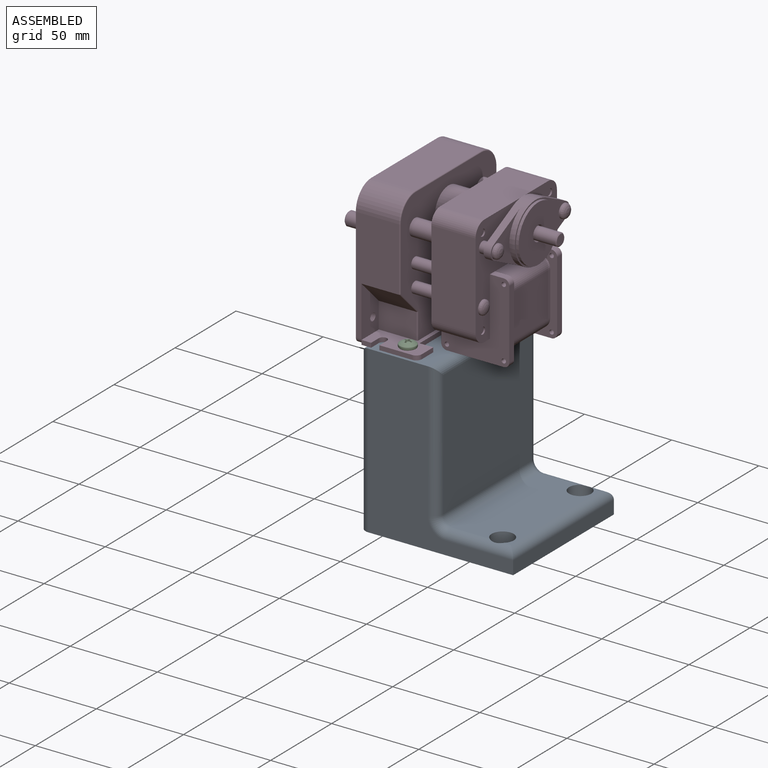
[diagram: assembled view]
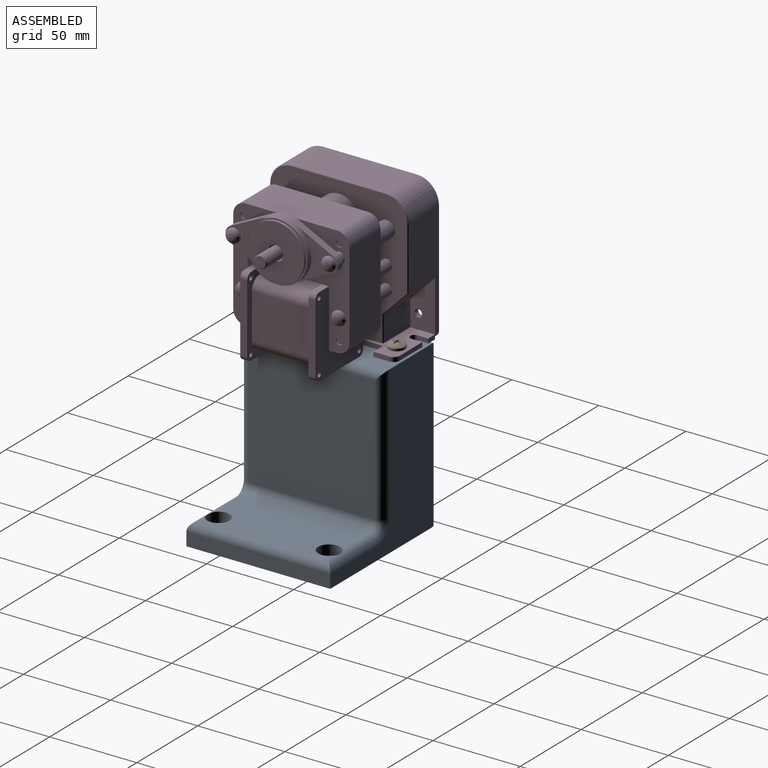
[diagram: assembled view, second angle]
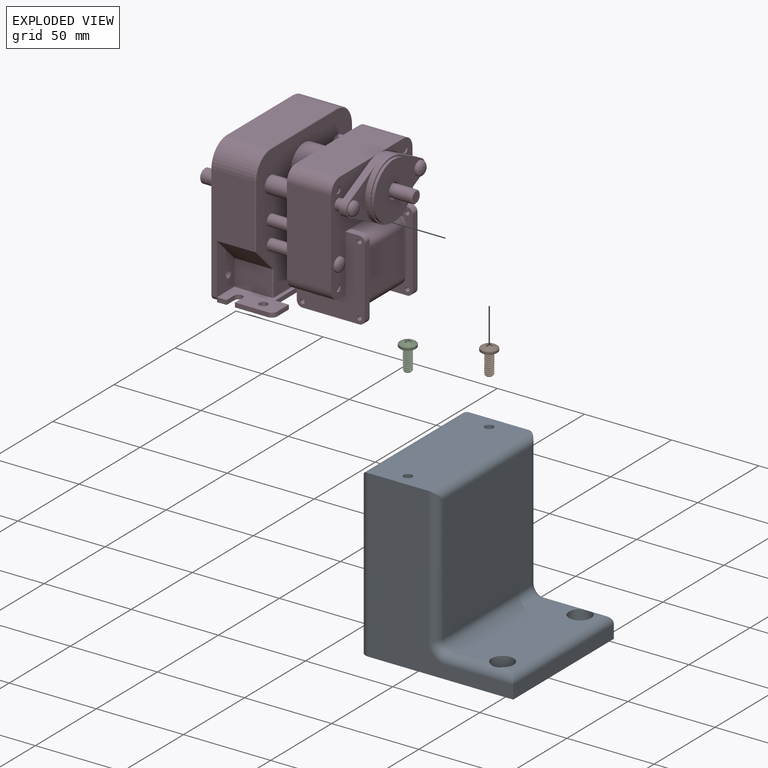
[diagram: exploded view]
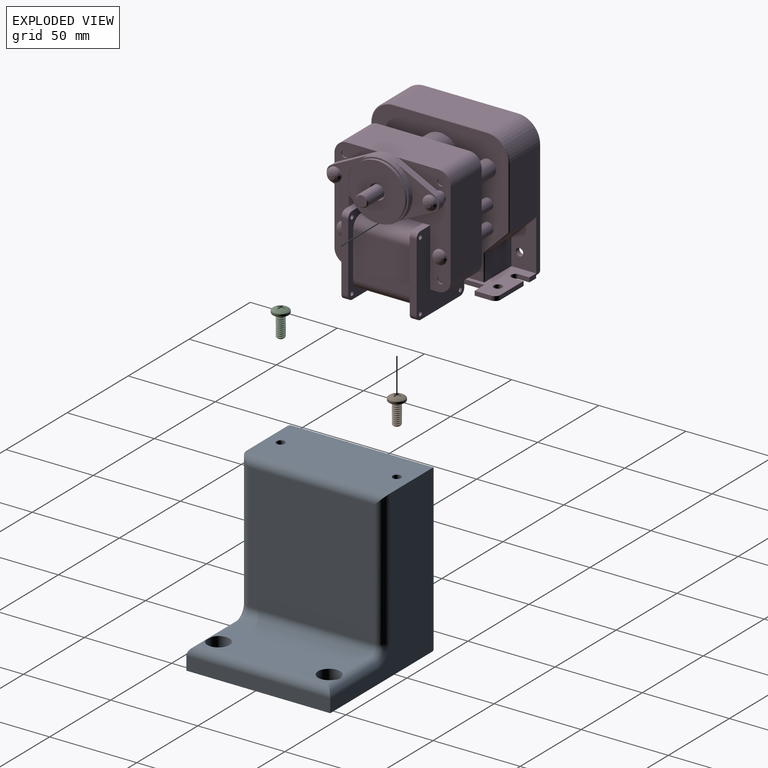
[diagram: exploded view, second angle]
ASSEMBLY  parts=4 mates=3
PART A: 34 faces, bbox 88.2x82.6x95.3 mm
  f0: plane 72.39x33.6mm, normal (0,0,1), area 2203.1mm2, adj f1,f2,f14,f16,f30,f33
  f1: cylinder r=5.08mm len=38.68mm, axis (1,0,0), area 281.8mm2, adj f0,f8,f15,f16,f33
  f2: cylinder r=5.08mm len=38.68mm, axis (-1,0,0), area 281.8mm2, adj f0,f9,f12,f16,f30
  f3: plane 88.21x82.55mm, normal (0,0,-1), area 7144.3mm2, adj f4,f7,f8,f9,f17,f18,f24,f26
  f4: plane 82.55x7.62mm, normal (1,0,0), area 629mm2, adj f3,f8,f9,f16
  f5: plane 72.39x72.39mm, normal (1,0,0), area 5240.3mm2, adj f10,f11,f13,f14
  f6: plane 82.55x34.29mm, normal (0,0,1), area 2794.1mm2, adj f8,f9,f11,f19,f20,f22
  f7: plane 90.17x72.39mm, normal (-1,0,0), area 6527.4mm2, adj f3,f17,f18,f19
  f8: plane 95.25x83.13mm, normal (0,-1,0), area 3660.5mm2, adj f1,f3,f4,f6,f13,f15,f17
  f9: plane 95.25x83.13mm, normal (0,1,0), area 3660.5mm2, adj f2,f3,f4,f6,f10,f12,f18
  f10: cylinder r=5.08mm len=77.47mm, axis (0,0,1), area 603.5mm2, adj f5,f9,f11,f12
  f11: cylinder r=5.08mm len=82.55mm, axis (0,1,0), area 629.3mm2, adj f5,f6,f10,f13
  f12: torus R=10.16mm, axis (0,-1,0), area 86.8mm2, adj f2,f9,f10,f14
  f13: cylinder r=5.08mm len=77.47mm, axis (0,0,-1), area 603.5mm2, adj f5,f8,f11,f15
  f14: cylinder r=5.08mm len=72.39mm, axis (0,-1,0), area 577.6mm2, adj f0,f5,f12,f15
  f15: torus R=10.16mm, axis (0,-1,0), area 86.8mm2, adj f1,f8,f13,f14
  f16: cylinder r=5.08mm len=82.55mm, axis (0,1,0), area 629.3mm2, adj f0,f1,f2,f4
  f17: cylinder r=5.08mm len=95.25mm, axis (0,0,1), area 745.3mm2, adj f3,f7,f8,f19
  f18: cylinder r=5.08mm len=95.25mm, axis (0,0,-1), area 745.3mm2, adj f3,f7,f9,f19
  f19: cylinder r=5.08mm len=82.55mm, axis (0,1,0), area 629.3mm2, adj f6,f7,f17,f18
  f20: cylinder r=2.41mm len=25.4mm, axis (0,0,1), area 385.1mm2, adj f6,f21
  f21: cone r=0mm half-angle=59deg, axis (0,0,1), area 21.3mm2, adj f20
  f22: cylinder r=2.41mm len=25.4mm, axis (0,0,1), area 385.1mm2, adj f6,f23
  f23: cone r=0mm half-angle=59deg, axis (0,0,1), area 21.3mm2, adj f22
  f24: cylinder r=3.17mm len=25.4mm, axis (0,0,-1), area 506.7mm2, adj f3,f25
  f25: cone r=0mm half-angle=59deg, axis (0,0,-1), area 36.9mm2, adj f24
  f26: cylinder r=3.17mm len=25.4mm, axis (0,0,-1), area 506.7mm2, adj f3,f27
  f27: cone r=0mm half-angle=59deg, axis (0,0,-1), area 36.9mm2, adj f26
  f28: cylinder r=3.17mm len=6.35mm, axis (0,0,1), area 119.3mm2, adj f3,f29
  f29: plane 12.7x12.7mm, normal (0,0,1), area 95mm2, adj f28,f30
  f30: cylinder r=6.35mm len=12.7mm, axis (0,0,1), area 266.2mm2, adj f0,f2,f29
  f31: cylinder r=3.17mm len=6.35mm, axis (0,0,1), area 119.3mm2, adj f3,f32
  f32: plane 12.7x12.7mm, normal (0,0,1), area 95mm2, adj f31,f33
  f33: cylinder r=6.35mm len=12.7mm, axis (0,0,1), area 266.2mm2, adj f0,f1,f32
PART B: 68 faces, bbox 10.7x10.7x16.6 mm
  f0: cylinder r=2.41mm len=4.83mm, axis (0,0,1), area 1mm2, adj f12,f13,f24,f25
  f1: cylinder r=2.41mm len=4.83mm, axis (0,0,1), area 1mm2, adj f13,f14,f24,f25
  f2: cylinder r=2.41mm len=4.83mm, axis (0,0,1), area 1mm2, adj f14,f15,f24,f25
  f3: cylinder r=2.41mm len=4.83mm, axis (0,0,1), area 1mm2, adj f15,f16,f24,f25
  f4: cylinder r=2.41mm len=4.83mm, axis (0,0,1), area 1mm2, adj f16,f17,f24,f25
  f5: cylinder r=2.41mm len=4.83mm, axis (0,0,1), area 1mm2, adj f17,f18,f24,f25
  f6: cylinder r=2.41mm len=4.83mm, axis (0,0,1), area 1mm2, adj f18,f19,f24,f25
  f7: cylinder r=2.41mm len=4.83mm, axis (0,0,1), area 1mm2, adj f19,f20,f24,f25
  f8: cylinder r=2.41mm len=4.83mm, axis (0,0,1), area 1mm2, adj f20,f21,f24,f25
  f9: cylinder r=2.41mm len=4.83mm, axis (0,0,1), area 1mm2, adj f21,f22,f24,f25
  f10: cylinder r=2.41mm len=4.83mm, axis (0,0,1), area 1mm2, adj f22,f24,f25,f26
  f11: cylinder r=2.41mm len=0.92mm, axis (0,0,1), area 0mm2, adj f12,f23,f25
  f12: cylinder r=2.41mm len=4.83mm, axis (0,0,1), area 1mm2, adj f0,f11,f23,f24,f25
  f13: cylinder r=2.41mm len=4.83mm, axis (0,0,1), area 1mm2, adj f0,f1,f24,f25
  f14: cylinder r=2.41mm len=4.83mm, axis (0,0,1), area 1mm2, adj f1,f2,f24,f25
  f15: cylinder r=2.41mm len=4.83mm, axis (0,0,1), area 1mm2, adj f2,f3,f24,f25
  f16: cylinder r=2.41mm len=4.83mm, axis (0,0,1), area 1mm2, adj f3,f4,f24,f25
  f17: cylinder r=2.41mm len=4.83mm, axis (0,0,1), area 1mm2, adj f4,f5,f24,f25
  f18: cylinder r=2.41mm len=4.83mm, axis (0,0,1), area 1mm2, adj f5,f6,f24,f25
  f19: cylinder r=2.41mm len=4.83mm, axis (0,0,1), area 1mm2, adj f6,f7,f24,f25
  f20: cylinder r=2.41mm len=4.83mm, axis (0,0,1), area 1mm2, adj f7,f8,f24,f25
  f21: cylinder r=2.41mm len=4.83mm, axis (0,0,1), area 1mm2, adj f8,f9,f24,f25
  f22: cylinder r=2.41mm len=4.83mm, axis (0,0,1), area 1mm2, adj f9,f10,f24,f25
  f23: plane 8.66x8.66mm, normal (0,0,-1), area 39.9mm2, adj f11,f12,f24,f25,f29,f31
  f24: bspline ~13.1x5.57mm, area 119.7mm2, adj f0,f1,f2,f3,f4,f5,f6,f7
  f25: bspline ~13.27x5.57mm, area 120.6mm2, adj f0,f1,f2,f3,f4,f5,f6,f7
  f26: cylinder r=2.41mm len=4.48mm, axis (0,0,1), area 0.7mm2, adj f10,f24,f25,f30
  f27: bspline ~3.88x2.02mm, area 0.8mm2, adj f24,f29,f30
  f28: plane 3.45x3.45mm, normal (0,0,-1), area 9.4mm2, adj f29,f30
  f29: cylinder r=1.73mm len=12.7mm, axis (0,0,1), area 14.2mm2, adj f23,f24,f25,f27,f28
  f30: cone r=4.9mm half-angle=45deg, axis (0,0,1), area 6.1mm2, adj f24,f25,f26,f27,f28
  f31: torus R=4.13mm, axis (0,0,1), area 27.1mm2, adj f23,f32
  f32: cylinder r=4.74mm len=9.47mm, axis (0,0,-1), area 23.4mm2, adj f31,f34
  f33: sphere r=7.49mm, area 61.9mm2, adj f34,f35,f36,f37,f38,f39,f40,f42
  f34: torus R=4.13mm, axis (0,0,1), area 16.5mm2, adj f32,f33
  f35: cone r=2.38mm half-angle=20deg, axis (0,0,1), area 2mm2, adj f33,f36,f41,f55
  f36: plane 2.77x1.05mm, normal (-1,0,0.09), area 1.6mm2, adj f33,f35,f41,f64
  f37: plane 2.8x0.62mm, normal (-0.92,-0.38,0.09), area 1.5mm2, adj f33,f41,f63,f64
  f38: plane 2.8x0.62mm, normal (-0.38,-0.92,0.09), area 1.5mm2, adj f33,f41,f62,f63
  f39: plane 2.77x1.05mm, normal (0,-1,0.09), area 1.6mm2, adj f33,f40,f41,f62
  f40: cone r=2.38mm half-angle=20deg, axis (0,0,1), area 2mm2, adj f33,f39,f41,f42
  f41: plane 2.67x2.67mm, normal (0,0,1), area 3.4mm2, adj f35,f36,f37,f38,f39,f40,f42,f43
  f42: plane 2.77x1.05mm, normal (0,1,0.09), area 1.6mm2, adj f33,f40,f41,f61
  f43: plane 2.8x0.62mm, normal (-0.38,0.92,0.09), area 1.5mm2, adj f33,f41,f60,f61
  f44: plane 2.8x0.62mm, normal (-0.92,0.38,0.09), area 1.5mm2, adj f33,f41,f59,f60
  f45: plane 2.77x1.05mm, normal (-1,0,0.09), area 1.6mm2, adj f33,f41,f46,f59
  f46: cone r=2.38mm half-angle=20deg, axis (0,0,1), area 2mm2, adj f33,f41,f45,f47
  f47: plane 2.77x1.05mm, normal (1,0,0.09), area 1.6mm2, adj f33,f41,f46,f58
  f48: plane 2.8x0.62mm, normal (0.92,0.38,0.09), area 1.5mm2, adj f33,f41,f57,f58
  f49: plane 2.8x0.62mm, normal (0.38,0.92,0.09), area 1.5mm2, adj f33,f41,f56,f57
  f50: plane 2.77x1.05mm, normal (0,1,0.09), area 1.6mm2, adj f33,f41,f51,f56
  f51: cone r=2.38mm half-angle=20deg, axis (0,0,1), area 2mm2, adj f33,f41,f50,f52
  f52: plane 2.77x1.05mm, normal (0,-1,0.09), area 1.6mm2, adj f33,f41,f51,f67
  f53: plane 2.8x0.62mm, normal (0.38,-0.92,0.09), area 1.5mm2, adj f33,f41,f66,f67
  f54: plane 2.8x0.62mm, normal (0.92,-0.38,0.09), area 1.5mm2, adj f33,f41,f65,f66
  f55: plane 2.77x1.05mm, normal (1,0,0.09), area 1.6mm2, adj f33,f35,f41,f65
  f56: cylinder r=0.1mm len=2.76mm, axis (-0.02,-0.09,1), area 0.1mm2, adj f33,f41,f49,f50
  f57: cylinder r=0.1mm len=2.8mm, axis (-0.07,-0.07,1), area 0.2mm2, adj f33,f41,f48,f49
  f58: cylinder r=0.1mm len=2.76mm, axis (-0.09,-0.02,1), area 0.1mm2, adj f33,f41,f47,f48
  f59: cylinder r=0.1mm len=2.76mm, axis (0.09,-0.02,1), area 0.1mm2, adj f33,f41,f44,f45
  f60: cylinder r=0.1mm len=2.8mm, axis (0.07,-0.07,1), area 0.2mm2, adj f33,f41,f43,f44
  f61: cylinder r=0.1mm len=2.76mm, axis (0.02,-0.09,1), area 0.1mm2, adj f33,f41,f42,f43
  f62: cylinder r=0.1mm len=2.76mm, axis (0.02,0.09,1), area 0.1mm2, adj f33,f38,f39,f41
  f63: cylinder r=0.1mm len=2.8mm, axis (0.07,0.07,1), area 0.2mm2, adj f33,f37,f38,f41
  f64: cylinder r=0.1mm len=2.76mm, axis (0.09,0.02,1), area 0.1mm2, adj f33,f36,f37,f41
  f65: cylinder r=0.1mm len=2.76mm, axis (-0.09,0.02,1), area 0.1mm2, adj f33,f41,f54,f55
  f66: cylinder r=0.1mm len=2.8mm, axis (-0.07,0.07,1), area 0.2mm2, adj f33,f41,f53,f54
  f67: cylinder r=0.1mm len=2.76mm, axis (-0.02,0.09,1), area 0.1mm2, adj f33,f41,f52,f53
PART C: same geometry as B
PART D: 196 faces, bbox 81.7x82.2x121.6 mm
  f0: plane 35.26x18.4mm, normal (0,-1,0), area 648.6mm2, adj f167,f168,f174,f176
  f1: plane 35.26x18.4mm, normal (0,1,0), area 648.6mm2, adj f167,f168,f175,f177
  f2: plane 39.76x3.96mm, normal (0,0,1), area 157.5mm2, adj f165,f167,f179,f181
  f3: plane 39.69x3.96mm, normal (0,0,-1), area 157.3mm2, adj f165,f167,f182,f185
  f4: plane 35.26x25.4mm, normal (0,1,0), area 895.5mm2, adj f6,f106,f167,f168
  f5: plane 78.11x77.78mm, normal (0,0,-1), area 4716.9mm2, adj f72,f96,f97,f98,f99,f100,f101,f102
  f6: plane 66.68x63.5mm, normal (0,0,1), area 2092.8mm2, adj f4,f105,f108,f109,f110,f111,f112,f113
  f7: plane 9.46x2.54mm, normal (0,0,-1), area 24mm2, adj f12,f72,f92,f94
  f8: plane 5.54x2.54mm, normal (-1,0,0), area 14.1mm2, adj f12,f72,f78,f88
  f9: plane 5.54x2.54mm, normal (1,0,0), area 14.1mm2, adj f12,f72,f79,f83
  f10: plane 78.66x77.09mm, normal (0,0,1), area 5641.5mm2, adj f29,f30,f31,f32,f33,f34,f35,f36
  f11: cylinder r=3.17mm len=3.18mm, axis (0,0,1), area 15.8mm2, adj f12,f18,f19,f75,f78
  f12: plane 79.25x35.56mm, normal (0,1,0), area 2254.7mm2, adj f7,f8,f9,f11,f13,f19,f78,f79
  f13: cylinder r=3.17mm len=3.18mm, axis (0,0,1), area 15.8mm2, adj f12,f14,f19,f71,f79
  f14: plane 65.08x24.77mm, normal (1,0,0), area 994.6mm2, adj f13,f15,f19,f71,f73,f104
  f15: cylinder r=12.7mm len=24.77mm, axis (0,0,1), area 494mm2, adj f14,f16,f19,f102
  f16: plane 53.98x24.77mm, normal (0,-1,0), area 1336.7mm2, adj f15,f17,f19,f100
  f17: cylinder r=12.7mm len=24.77mm, axis (0,0,1), area 494mm2, adj f16,f18,f19,f99
  f18: plane 65.08x24.77mm, normal (-1,0,0), area 994.6mm2, adj f11,f17,f19,f75,f77,f98
  f19: plane 80.95x79.38mm, normal (0,0,1), area 270.5mm2, adj f11,f12,f13,f14,f15,f16,f17,f18
  f20: cylinder r=2.29mm len=2.29mm, axis (0,0,1), area 2.7mm2, adj f19,f21,f27,f28
  f21: plane 73.03x0.76mm, normal (0,-1,0), area 55.6mm2, adj f19,f20,f22,f28
  f22: cylinder r=2.29mm len=2.29mm, axis (0,0,1), area 2.7mm2, adj f19,f21,f23,f28
  f23: plane 65.08x0.76mm, normal (-1,0,0), area 49.6mm2, adj f19,f22,f24,f28
  f24: cylinder r=11.81mm len=11.81mm, axis (0,0,1), area 14.1mm2, adj f19,f23,f25,f28
  f25: plane 53.98x0.76mm, normal (0,1,0), area 41.1mm2, adj f19,f24,f26,f28
  f26: cylinder r=11.81mm len=11.81mm, axis (0,0,1), area 14.1mm2, adj f19,f25,f27,f28
  f27: plane 65.08x0.76mm, normal (1,0,0), area 49.6mm2, adj f19,f20,f26,f28
  f28: plane 79.17x77.6mm, normal (0,0,1), area 76.4mm2, adj f20,f21,f22,f23,f24,f25,f26,f27
  f29: cylinder r=2.03mm len=2.03mm, axis (0,0,1), area 2.4mm2, adj f10,f28,f30,f36
  f30: plane 73.03x0.76mm, normal (0,1,0), area 55.6mm2, adj f10,f28,f29,f31
  f31: cylinder r=2.03mm len=2.03mm, axis (0,0,1), area 2.4mm2, adj f10,f28,f30,f32
  f32: plane 65.08x0.76mm, normal (1,0,0), area 49.6mm2, adj f10,f28,f31,f33
  f33: cylinder r=11.56mm len=11.56mm, axis (0,0,1), area 13.8mm2, adj f10,f28,f32,f34
  f34: plane 53.98x0.76mm, normal (0,-1,0), area 41.1mm2, adj f10,f28,f33,f35
  f35: cylinder r=11.56mm len=11.56mm, axis (0,0,1), area 13.8mm2, adj f10,f28,f34,f36
  f36: plane 65.08x0.76mm, normal (-1,0,0), area 49.6mm2, adj f10,f28,f29,f35
  f37: cylinder r=9.53mm len=19.05mm, axis (0,0,-1), area 326.8mm2, adj f10,f61
  f38: plane 17.27x17.27mm, normal (0,0,1), area 156.2mm2, adj f61,f65
  f39: cone r=2.5mm half-angle=45deg, axis (0,0,1), area 6.7mm2, adj f10,f41,f42,f43,f44
  f40: plane 4.62x4.56mm, normal (0,0,1), area 14.9mm2, adj f41,f42,f43,f44
  f41: cylinder r=2.41mm len=6.26mm, axis (0,0,1), area 6.6mm2, adj f39,f40,f42,f44
  f42: bspline ~6.76x5.67mm, area 52.2mm2, adj f39,f40,f41,f43
  f43: cylinder r=1.98mm len=5.83mm, axis (0,0,-1), area 10.7mm2, adj f39,f40,f42,f44
  f44: bspline ~6.89x5.67mm, area 51.4mm2, adj f39,f40,f41,f43
  f45: cone r=2.5mm half-angle=45deg, axis (0,0,1), area 6.7mm2, adj f10,f47,f48,f49,f50
  f46: plane 4.62x4.56mm, normal (0,0,1), area 14.9mm2, adj f47,f48,f49,f50
  f47: cylinder r=2.41mm len=6.26mm, axis (0,0,1), area 6.6mm2, adj f45,f46,f48,f50
  f48: bspline ~6.76x5.67mm, area 52.2mm2, adj f45,f46,f47,f49
  f49: cylinder r=1.98mm len=5.83mm, axis (0,0,-1), area 10.7mm2, adj f45,f46,f48,f50
  f50: bspline ~6.89x5.67mm, area 51.4mm2, adj f45,f46,f47,f49
  f51: cone r=2.5mm half-angle=45deg, axis (0,0,1), area 6.7mm2, adj f10,f52,f53,f54,f55
  f52: cylinder r=2.41mm len=4.83mm, axis (0,0,1), area 6.1mm2, adj f51,f53,f55,f75
  f53: bspline ~5.67x4.91mm, area 24.9mm2, adj f51,f52,f54,f75
  f54: cylinder r=1.98mm len=3.97mm, axis (0,0,-1), area 8.3mm2, adj f51,f53,f55,f75
  f55: bspline ~5.67x4.91mm, area 24.2mm2, adj f51,f52,f54,f75
  f56: cone r=2.5mm half-angle=45deg, axis (0,0,1), area 6.7mm2, adj f10,f57,f58,f59,f60
  f57: cylinder r=2.41mm len=4.83mm, axis (0,0,1), area 6.1mm2, adj f56,f58,f60,f71
  f58: bspline ~5.67x4.91mm, area 24.9mm2, adj f56,f57,f59,f71
  f59: cylinder r=1.98mm len=3.97mm, axis (0,0,-1), area 8.3mm2, adj f56,f58,f60,f71
  f60: bspline ~5.67x4.91mm, area 24.2mm2, adj f56,f57,f59,f71
  f61: cone r=8.64mm half-angle=45deg, axis (0,0,-1), area 71.7mm2, adj f37,f38
  f62: cylinder r=4.6mm len=9.21mm, axis (0,0,1), area 33.1mm2, adj f63,f65
  f63: plane 9.21x9.21mm, normal (0,0,1), area 17.1mm2, adj f62,f64
  f64: cylinder r=3.97mm len=26.42mm, axis (0,0,1), area 563.9mm2, adj f63,f67,f68,f70
  f65: cone r=4.6mm half-angle=45deg, axis (0,0,1), area 16.2mm2, adj f38,f62
  f66: plane 6.92x6.13mm, normal (0,0,1), area 35.2mm2, adj f69,f70
  f67: plane 18.54x4.77mm, normal (0,1,0), area 88.4mm2, adj f64,f68,f69
  f68: plane 4.77x0.8mm, normal (0,0,1), area 2.6mm2, adj f64,f67
  f69: plane 4.78x0.52mm, normal (0,0.71,0.71), area 3.3mm2, adj f66,f67,f70
  f70: cone r=3.46mm half-angle=45deg, axis (0,0,-1), area 13.2mm2, adj f64,f66,f69
  f71: plane 29.43x14.51mm, normal (0,0,-1), area 300.4mm2, adj f13,f14,f57,f58,f59,f60,f72,f73
  f72: plane 79.25x32.39mm, normal (0,-1,0), area 894mm2, adj f5,f7,f8,f9,f71,f74,f75,f76
  f73: plane 21.59x14.29mm, normal (0.71,0.71,0), area 436.2mm2, adj f14,f71,f74,f103
  f74: plane 21.59x14.92mm, normal (1,0,0), area 322.2mm2, adj f71,f72,f73,f101
  f75: plane 29.43x14.51mm, normal (0,0,-1), area 300.4mm2, adj f11,f18,f52,f53,f54,f55,f72,f76
  f76: plane 21.59x14.92mm, normal (-1,0,0), area 322.2mm2, adj f72,f75,f77,f96
  f77: plane 21.59x14.29mm, normal (-0.71,0.71,0), area 436.2mm2, adj f18,f75,f76,f97
  f78: plane 3.11x2.54mm, normal (0,0,1), area 2mm2, adj f8,f11,f12
  f79: plane 3.11x2.54mm, normal (0,0,1), area 2mm2, adj f9,f12,f13
  f80: plane 18.9x2.54mm, normal (1,0,0), area 48mm2, adj f12,f72,f85,f94
  f81: plane 18.9x2.54mm, normal (-1,0,0), area 48mm2, adj f12,f72,f89,f95
  f82: plane 9.46x2.54mm, normal (0,0,-1), area 24mm2, adj f12,f72,f93,f95
  f83: plane 6.29x2.54mm, normal (0,0,-1), area 16mm2, adj f9,f12,f72,f84
  f84: cylinder r=2.38mm len=4.76mm, axis (0,1,0), area 19mm2, adj f12,f72,f83,f85
  f85: plane 6.29x2.54mm, normal (0,0,1), area 16mm2, adj f12,f72,f80,f84
  f86: cylinder r=2.41mm len=4.83mm, axis (0,1,0), area 38.5mm2, adj f12,f72
  f87: cylinder r=2.38mm len=4.76mm, axis (0,1,0), area 19mm2, adj f12,f72,f88,f89
  f88: plane 6.29x2.54mm, normal (0,0,-1), area 16mm2, adj f8,f12,f72,f87
  f89: plane 6.29x2.54mm, normal (0,0,1), area 16mm2, adj f12,f72,f81,f87
  f90: cylinder r=2.41mm len=4.83mm, axis (0,1,0), area 38.5mm2, adj f12,f72
  f91: plane 53.98x2.54mm, normal (0,0,-1), area 137.1mm2, adj f12,f72,f92,f93
  f92: plane 7.87x2.54mm, normal (-1,0,0), area 20mm2, adj f7,f12,f72,f91
  f93: plane 7.87x2.54mm, normal (1,0,0), area 20mm2, adj f12,f72,f82,f91
  f94: cylinder r=3.17mm len=3.18mm, axis (0,-1,0), area 12.7mm2, adj f7,f12,f72,f80
  f95: cylinder r=3.17mm len=3.18mm, axis (0,1,0), area 12.7mm2, adj f12,f72,f81,f82
  f96: cylinder r=0.64mm len=15.19mm, axis (0,-1,0), area 15mm2, adj f5,f72,f76,f97
  f97: cylinder r=0.64mm len=14.92mm, axis (-0.71,-0.71,0), area 20.2mm2, adj f5,f77,f96,f98
  f98: cylinder r=0.64mm len=36.5mm, axis (0,1,0), area 36.3mm2, adj f5,f18,f97,f99
  f99: torus R=12.06mm, axis (0,0,1), area 19.5mm2, adj f5,f17,f98,f100
  f100: cylinder r=0.64mm len=53.98mm, axis (-1,0,0), area 53.8mm2, adj f5,f16,f99,f102
  f101: cylinder r=0.64mm len=15.19mm, axis (0,1,0), area 15mm2, adj f5,f72,f74,f103
  f102: torus R=12.06mm, axis (0,0,1), area 19.5mm2, adj f5,f15,f100,f104
  f103: cylinder r=0.64mm len=14.92mm, axis (-0.71,0.71,0), area 20.2mm2, adj f5,f73,f101,f104
  f104: cylinder r=0.64mm len=36.5mm, axis (0,-1,0), area 36.3mm2, adj f5,f14,f102,f103
  f105: cylinder r=11.11mm len=22.23mm, axis (0,0,-1), area 939.9mm2, adj f5,f6
  f106: plane 66.68x63.5mm, normal (0,0,-1), area 2425.6mm2, adj f4,f108,f109,f110,f111,f112,f113,f114
  f107: plane 64.45x34.01mm, normal (0,0,1), area 1284.3mm2, adj f117,f120,f121,f122,f123,f124,f125,f129
  f108: cylinder r=7.15mm len=25.4mm, axis (0,0,1), area 285.3mm2, adj f6,f106,f109,f116
  f109: plane 49.2x25.4mm, normal (1,0,0), area 1249.7mm2, adj f6,f106,f108,f110
  f110: cylinder r=7.15mm len=25.4mm, axis (0,0,1), area 285.3mm2, adj f6,f106,f109,f111
  f111: plane 52.38x25.4mm, normal (0,-1,0), area 1330.3mm2, adj f6,f106,f110,f112
  f112: cylinder r=7.15mm len=25.4mm, axis (0,0,1), area 285.3mm2, adj f6,f106,f111,f113
  f113: plane 49.2x25.4mm, normal (-1,0,0), area 1249.7mm2, adj f6,f106,f112,f114
  f114: cylinder r=7.15mm len=25.4mm, axis (0,0,1), area 285.3mm2, adj f6,f106,f113,f115
  f115: plane 25.4x4.6mm, normal (0,1,0), area 116.8mm2, adj f6,f106,f114,f163
  f116: plane 25.4x4.6mm, normal (0,1,0), area 116.8mm2, adj f6,f106,f108,f165
  f117: cylinder r=3.17mm len=6.35mm, axis (0,0,1), area 76mm2, adj f106,f107
  f118: plane 30.44x24.65mm, normal (0,0,-1), area 190.2mm2, adj f120,f121,f122,f129,f138
  f119: plane 30.44x24.65mm, normal (0,0,-1), area 190.2mm2, adj f123,f124,f125,f129,f136
  f120: plane 22.01x10.96mm, normal (0.45,0.9,0), area 101.5mm2, adj f107,f118,f121,f129
  f121: cylinder r=4.76mm len=8.53mm, axis (0,0,-1), area 43.6mm2, adj f107,f118,f120,f122
  f122: plane 22.01x10.96mm, normal (0.45,-0.9,0), area 101.5mm2, adj f107,f118,f121,f129
  f123: plane 22.01x10.96mm, normal (-0.45,0.9,0), area 101.5mm2, adj f107,f119,f125,f129
  f124: plane 22.01x10.96mm, normal (-0.45,-0.9,0), area 101.5mm2, adj f107,f119,f125,f129
  f125: cylinder r=4.76mm len=8.53mm, axis (0,0,-1), area 43.6mm2, adj f107,f119,f123,f124
  f126: plane 32.39x32.39mm, normal (0,0,-1), area 764.6mm2, adj f128,f135
  f127: plane 34.01x34.01mm, normal (0,0,-1), area 84.8mm2, adj f128,f129
  f128: cylinder r=16.19mm len=32.39mm, axis (0,0,-1), area 161.5mm2, adj f126,f127
  f129: cylinder r=17.01mm len=34.01mm, axis (0,0,-1), area 469mm2, adj f107,f118,f119,f120,f122,f123,f124,f127
  f130: cylinder r=3.83mm len=7.66mm, axis (0,0,-1), area 64.2mm2, adj f131,f135
  f131: plane 7.66x7.66mm, normal (0,0,-1), area 5.9mm2, adj f130,f134
  f132: plane 6.13x6.13mm, normal (0,0,-1), area 29.6mm2, adj f133
  f133: cone r=3.58mm half-angle=45deg, axis (0,0,1), area 15mm2, adj f132,f134
  f134: cylinder r=3.58mm len=15.37mm, axis (0,0,-1), area 345.2mm2, adj f131,f133
  f135: cone r=3.83mm half-angle=45deg, axis (0,0,-1), area 18.4mm2, adj f126,f130
  f136: cylinder r=3.97mm len=7.94mm, axis (0,0,1), area 19.8mm2, adj f119,f137
  f137: revolved ~7.94x7.94mm, area 70.7mm2, adj f136
  f138: cylinder r=3.97mm len=7.94mm, axis (0,0,1), area 19.8mm2, adj f118,f139
  f139: revolved ~7.94x7.94mm, area 70.7mm2, adj f138
  f140: cylinder r=3.17mm len=6.35mm, axis (0,0,1), area 76mm2, adj f106,f107
  f141: cylinder r=3.58mm len=7.15mm, axis (0,0,1), area 49.9mm2, adj f107,f142
  f142: plane 11.98x11.98mm, normal (0,0,-1), area 72.5mm2, adj f141,f143
  f143: cylinder r=5.99mm len=11.98mm, axis (0,0,1), area 59.7mm2, adj f106,f142
  f144: cylinder r=1.98mm len=3.96mm, axis (0,0,-1), area 11.1mm2, adj f106,f145
  f145: plane 3.96x3.96mm, normal (0,0,-1), area 12.3mm2, adj f144
  f146: cylinder r=1.98mm len=3.96mm, axis (0,0,-1), area 11.1mm2, adj f106,f147
  f147: plane 3.96x3.96mm, normal (0,0,-1), area 12.3mm2, adj f146
  f148: cylinder r=1.98mm len=3.96mm, axis (0,0,-1), area 11.1mm2, adj f106,f149
  f149: plane 3.96x3.96mm, normal (0,0,-1), area 12.3mm2, adj f148
  f150: cylinder r=1.98mm len=3.96mm, axis (0,0,-1), area 11.1mm2, adj f106,f151
  f151: plane 3.96x3.96mm, normal (0,0,-1), area 12.3mm2, adj f150
  f152: cylinder r=3.97mm len=7.94mm, axis (0,0,1), area 15.8mm2, adj f106,f153
  f153: revolved ~7.94x7.94mm, area 67.2mm2, adj f152
  f154: cylinder r=3.97mm len=7.94mm, axis (0,0,1), area 15.8mm2, adj f106,f155
  f155: revolved ~7.94x7.94mm, area 67.2mm2, adj f154
  f156: cylinder r=3.17mm len=13.46mm, axis (0,0,-1), area 268.6mm2, adj f5,f6
  f157: cylinder r=3.17mm len=13.46mm, axis (0,0,-1), area 268.6mm2, adj f5,f6
  f158: cylinder r=4.76mm len=13.46mm, axis (0,0,-1), area 402.8mm2, adj f5,f6
  f159: cylinder r=4.76mm len=13.46mm, axis (0,0,-1), area 402.8mm2, adj f5,f6
  f160: cylinder r=3.17mm len=13.46mm, axis (0,0,-1), area 268.6mm2, adj f5,f6
  f161: cylinder r=3.17mm len=13.46mm, axis (0,0,-1), area 268.6mm2, adj f5,f6
  f162: plane 7.94x3.96mm, normal (0,-1,0), area 31.5mm2, adj f106,f163,f168,f183
  f163: plane 46.04x39.02mm, normal (-1,0,0), area 924.7mm2, adj f6,f106,f115,f162,f169,f170,f171,f178
  f164: plane 7.94x3.96mm, normal (0,-1,0), area 31.5mm2, adj f106,f165,f167,f182
  f165: plane 46.04x39.02mm, normal (1,0,0), area 924.7mm2, adj f2,f3,f6,f106,f116,f164,f166,f179
  f166: plane 32.67x3.96mm, normal (0,1,0), area 129.5mm2, adj f165,f167,f181,f185
  f167: plane 46.04x39.02mm, normal (-1,0,0), area 617.2mm2, adj f0,f1,f2,f3,f4,f164,f166,f172
  f168: plane 46.04x39.02mm, normal (1,0,0), area 617.2mm2, adj f0,f1,f4,f162,f169,f170,f171,f172
  f169: plane 32.67x3.96mm, normal (0,1,0), area 129.5mm2, adj f163,f168,f180,f184
  f170: plane 39.76x3.96mm, normal (0,0,1), area 157.5mm2, adj f163,f168,f178,f180
  f171: plane 39.69x3.96mm, normal (0,0,-1), area 157.3mm2, adj f163,f168,f183,f184
  f172: plane 35.26x25.41mm, normal (0,0,-1), area 895.9mm2, adj f167,f168,f176,f177
  f173: plane 35.26x25.41mm, normal (0,0,1), area 895.9mm2, adj f167,f168,f174,f175
  f174: cylinder r=6.35mm len=35.26mm, axis (-1,0,0), area 351.7mm2, adj f0,f167,f168,f173
  f175: cylinder r=6.35mm len=35.26mm, axis (1,0,0), area 351.7mm2, adj f1,f167,f168,f173
  f176: cylinder r=6.35mm len=35.26mm, axis (1,0,0), area 351.7mm2, adj f0,f167,f168,f172
  f177: cylinder r=6.35mm len=35.26mm, axis (-1,0,0), area 351.7mm2, adj f1,f167,f168,f172
  f178: cylinder r=3.17mm len=3.96mm, axis (-1,0,0), area 17.1mm2, adj f6,f163,f168,f170
  f179: cylinder r=3.17mm len=3.96mm, axis (-1,0,0), area 17.1mm2, adj f2,f6,f165,f167
  f180: cylinder r=3.17mm len=3.96mm, axis (-1,0,0), area 19.8mm2, adj f163,f168,f169,f170
  f181: cylinder r=3.17mm len=3.96mm, axis (-1,0,0), area 19.8mm2, adj f2,f165,f166,f167
  f182: cylinder r=3.17mm len=3.96mm, axis (1,0,0), area 19.8mm2, adj f3,f164,f165,f167
  f183: cylinder r=3.17mm len=3.96mm, axis (1,0,0), area 19.8mm2, adj f162,f163,f168,f171
  f184: cylinder r=3.17mm len=3.96mm, axis (-1,0,0), area 19.8mm2, adj f163,f168,f169,f171
  f185: cylinder r=3.17mm len=3.96mm, axis (-1,0,0), area 19.8mm2, adj f3,f165,f166,f167
  f186: cylinder r=1.27mm len=3.96mm, axis (-1,0,0), area 31.6mm2, adj f163,f168
  f187: cylinder r=1.27mm len=3.96mm, axis (-1,0,0), area 31.6mm2, adj f165,f167
  f188: cylinder r=1.27mm len=3.96mm, axis (-1,0,0), area 31.6mm2, adj f163,f168,f189
  f189: plane 2.54x1.94mm, normal (1,0,0), area 4.1mm2, adj f6,f188
  f190: plane 2.54x1.94mm, normal (-1,0,0), area 4.1mm2, adj f6,f191
  f191: cylinder r=1.27mm len=3.96mm, axis (-1,0,0), area 31.6mm2, adj f165,f167,f190
  f192: cylinder r=1.27mm len=3.96mm, axis (-1,0,0), area 31.6mm2, adj f163,f168
  f193: cylinder r=1.27mm len=3.96mm, axis (-1,0,0), area 31.6mm2, adj f165,f167
  f194: cylinder r=1.27mm len=3.96mm, axis (-1,0,0), area 31.6mm2, adj f163,f168
  f195: cylinder r=1.27mm len=3.96mm, axis (-1,0,0), area 31.6mm2, adj f165,f167
PLACE A t=(-29.34,47.23,-54.65)mm
PLACE B t=(-7.11,39.3,30.44)mm
PLACE C t=(-7.11,-27.38,30.44)mm
PLACE D rot(axis=(-0.58,-0.58,0.58),120deg) t=(-32.51,5.96,76.31)mm
MATE fastened C.f31 <-> D.f90  axis (0,0,-1) through (-7.11,-27.38,43.14)mm
MATE fastened D.f86 <-> A.f20  axis (0,0,-1) through (-7.11,39.3,40.6)mm
MATE fastened B.f31 <-> D.f86  axis (0,0,-1) through (-7.11,39.3,43.14)mm
